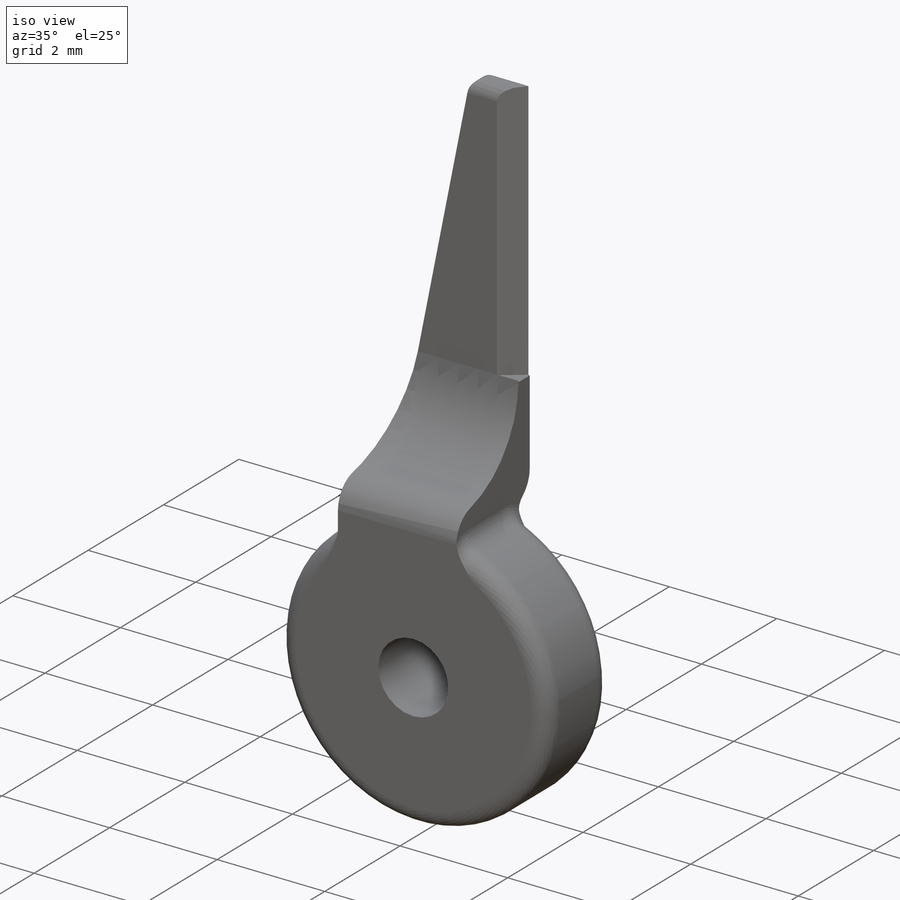
[diagram: iso view]
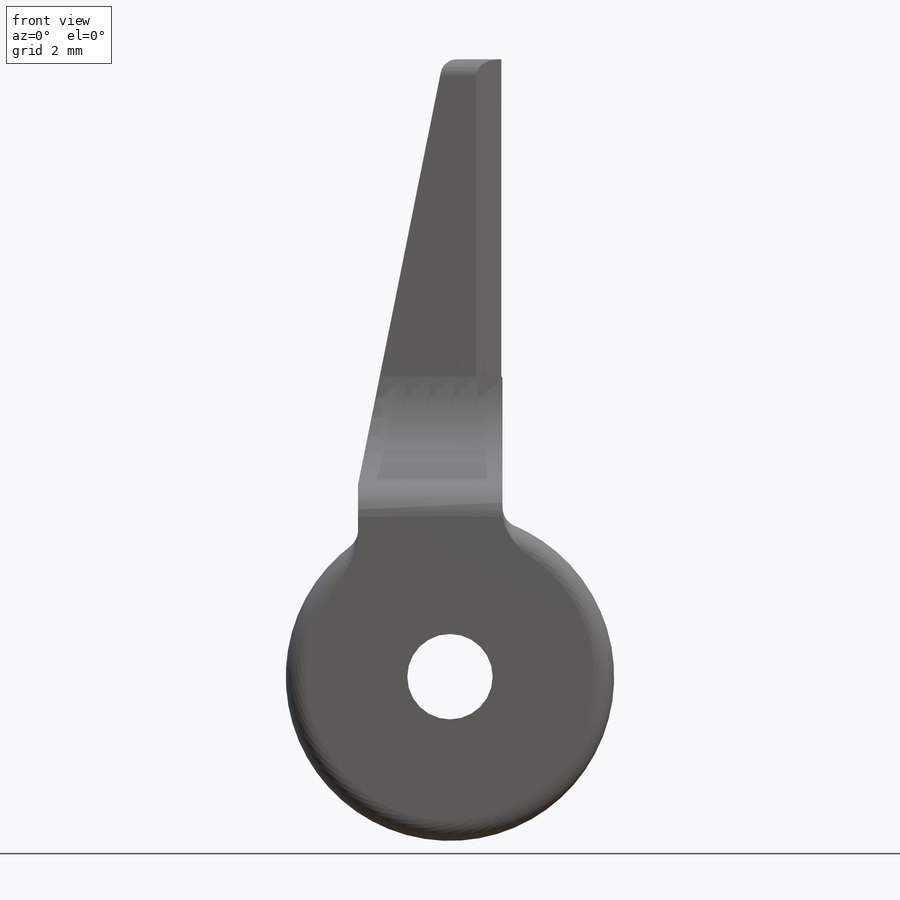
[diagram: front view]
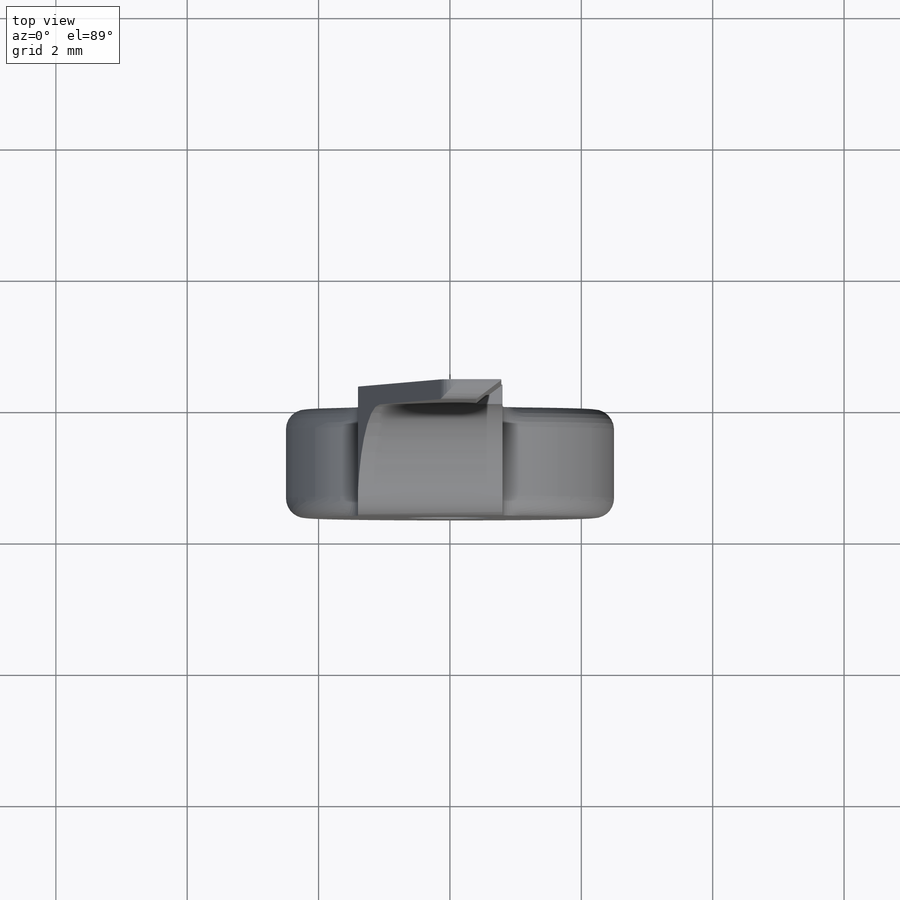
[diagram: top view]
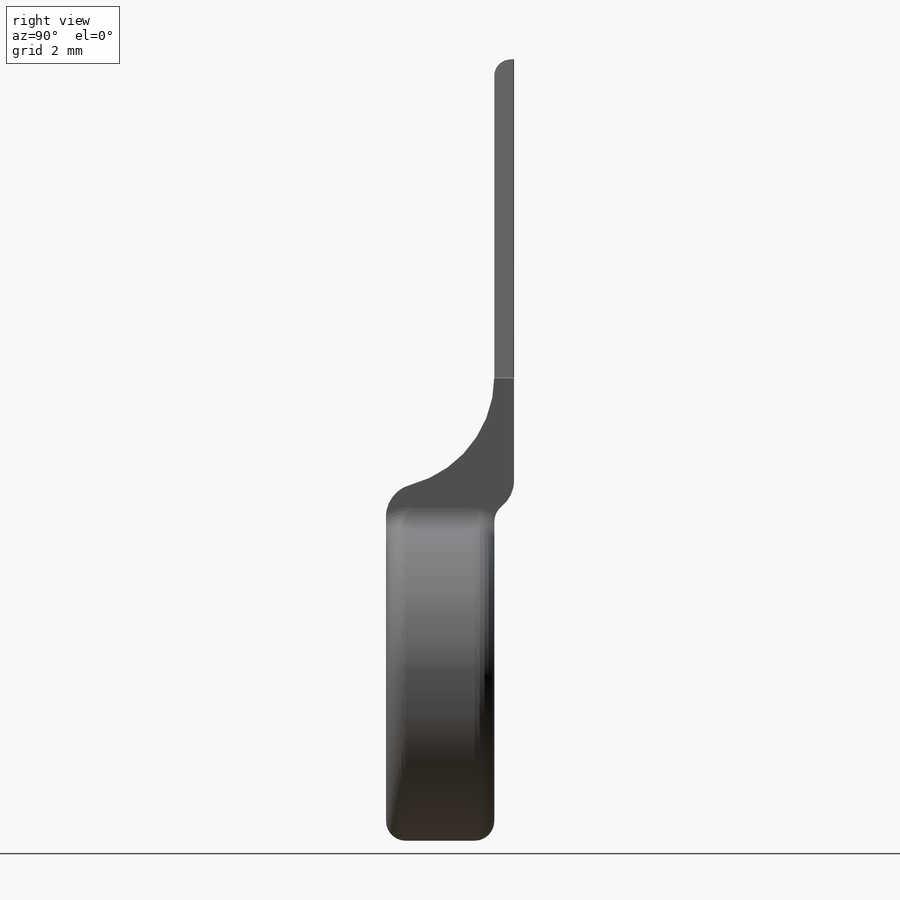
[diagram: right view]
SOLIDWORKS PART (.sldprt)
format: sldprt  version: not decoded by parser v0  size: 382,464 bytes
history: native  units: mm
features: sketch x12, fillet x10, cut_extrude x9, extrude x3, material x1, plane x1 (+14 scaffold rows collapsed)
feature tree (50):
  scaffold x14  (default folders/planes/origin — collapsed)
  material  "Material <not specified>"
  sketch  "Sketch1"  dims[D1=5.0mm]
  extrude  "Extrude1"  Depth=1.65mm
  sketch  "Sketch2"  dims[D1=1.3mm]
  cut_extrude  "Extrude2"  [1 undecoded]
  sketch  "Sketch3"  dims[c1.D1=2.2mm c1.D2=2.2mm c1.D3=~0.129804mm c1.D4=~0.329804mm c2.D3=0.6mm c2.D4=0.8mm]
  extrude  "Extrude4"  Depth=10.6mm
  sketch  "Sketch4"
  cut_extrude  "Extrude5"  [1 undecoded]
  sketch  "Sketch6"  dims[D1=0.6mm D2=0.5mm]
  cut_extrude  "Extrude7"  [1 undecoded]
  fillet  "Fillet3"  Radius=1.7mm
  fillet  "Fillet6"  Radius=0.3mm
  fillet  "Fillet8"  Radius=0.3mm
  sketch  "Sketch7"  dims[D1=0.5mm]
  cut_extrude  "Extrude8"  [1 undecoded]
  fillet  "Fillet9"  Radius=0.3mm
  fillet  "Fillet10"  Radius=0.3mm
  sketch  "Sketch8"  dims[D1=0.3mm D2=0.2mm D3=0.05mm D4=0.05mm]
  cut_extrude  "Extrude9"  Depth=4.4mm
  fillet  "Fillet11"  Radius=0.5mm
  sketch  "Sketch9"
  cut_extrude  "Extrude10"  [1 undecoded]
  sketch  "Sketch10"  dims[D1=9.4mm]
  sketch  "Sketch12"
  extrude  "Extrude13"  Depth=5mm
  cut_extrude  "Extrude11"  [1 undecoded]
  sketch  "Sketch11"  dims[D1=0.9mm]
  cut_extrude  "Extrude12"  [1 undecoded]
  plane  "Plane1"
  sketch  "Sketch14"  dims[D1=0.4mm]
  cut_extrude  "Extrude14"  Depth=4.85mm
  fillet  "Fillet12"  Radius=0.01mm
  fillet  "Fillet13"  Radius=0.01mm
  fillet  "Fillet14"  Radius=0.5mm
  fillet  "Fillet15"  Radius=0.25mm
decode coverage: 24 of 34 modeling features carry decoded parameters
note: ~ marks probable driven/reference dimensions
note: 7 parameter values undecoded
summary: no parameter record found for 7 features
note: suppression state not decoded; provenance and decode notes live in map.json
